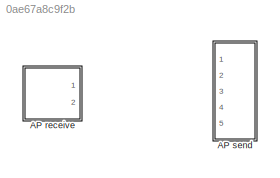
MODEL slx_0ae67a8c9f2b
KIND library
CONFIG AbsTol = auto
CONFIG EnableMultiTasking = off
CONFIG FixedStep = auto
CONFIG MaxStep = auto
CONFIG MinStep = auto
CONFIG RelTol = 1e-3
CONFIG SampleTimeConstraint = Unconstrained
CONFIG Solver = VariableStepAuto
CONFIG SolverName = VariableStepAuto
CONFIG StartTime = 0.0
CONFIG StopTime = 10.0
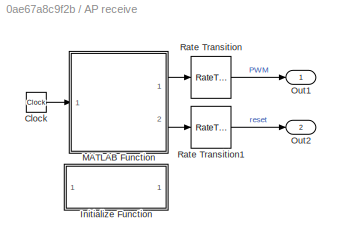
BLOCK [SubSystem] AP receive
  Ports = [0, 2]
  RequestExecContextInheritance = off
BLOCK [Clock] AP receive/Clock
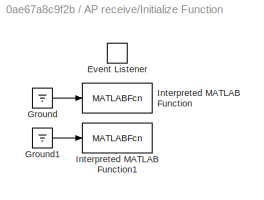
BLOCK [SubSystem] AP receive/Initialize Function
  Ports = []
  RequestExecContextInheritance = off
  TreatAsAtomicUnit = on
BLOCK [EventListener] AP receive/Initialize Function/Event Listener
  DisableCoverage = on
  EventName = reset
BLOCK [Ground] AP receive/Initialize Function/Ground
BLOCK [Ground] AP receive/Initialize Function/Ground1
BLOCK [MATLABFcn] AP receive/Initialize Function/Interpreted MATLAB Function
  MATLABFcn = clear('AP_receve')
  OutputDimensions = 0
  Ports = [1]
BLOCK [MATLABFcn] AP receive/Initialize Function/Interpreted MATLAB Function1
  MATLABFcn = clear('AP_send')
  OutputDimensions = 0
  Ports = [1]
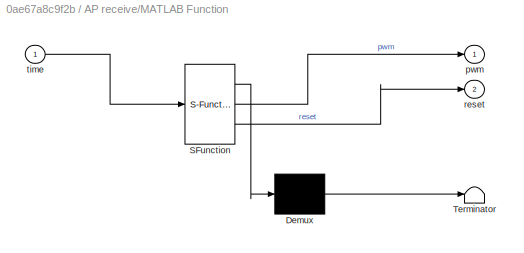
BLOCK [SubSystem] AP receive/MATLAB Function
  ErrorFcn = Stateflow.Translate.translate
  PermitHierarchicalResolution = ExplicitOnly
  Ports = [1, 2]
  RequestExecContextInheritance = off
  SFBlockType = MATLAB Function
  SystemSampleTime = 1/400
  TreatAsAtomicUnit = on
BLOCK [Demux] AP receive/MATLAB Function/ Demux 
  Outputs = 1
  Ports = [1, 1]
BLOCK [S-Function] AP receive/MATLAB Function/ SFunction 
  EnableBusSupport = on
  FunctionName = sf_sfun
  PortCounts = [1 3]
  Ports = [1, 3]
  SFcnIsStateOwnerBlock = off
  SFunctionDeploymentMode = off
  Tag = Stateflow S-Function AP_Conector 2
BLOCK [Terminator] AP receive/MATLAB Function/ Terminator 
BLOCK [Outport] AP receive/MATLAB Function/pwm
BLOCK [Outport] AP receive/MATLAB Function/reset
  Port = 2
BLOCK [Inport] AP receive/MATLAB Function/time
BLOCK [Outport] AP receive/Out1
  IconDisplay = Signal name
BLOCK [Outport] AP receive/Out2
  IconDisplay = Signal name
  Port = 2
BLOCK [RateTransition] AP receive/Rate Transition
BLOCK [RateTransition] AP receive/Rate Transition1
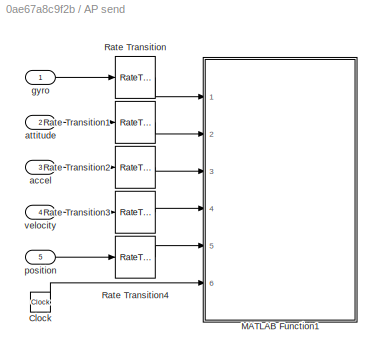
BLOCK [SubSystem] AP send
  Ports = [5]
  RequestExecContextInheritance = off
BLOCK [Clock] AP send/Clock
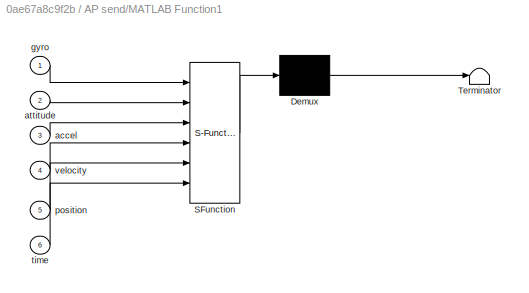
BLOCK [SubSystem] AP send/MATLAB Function1
  ErrorFcn = Stateflow.Translate.translate
  PermitHierarchicalResolution = ExplicitOnly
  Ports = [6]
  RequestExecContextInheritance = off
  SFBlockType = MATLAB Function
  SystemSampleTime = 1/400
  TreatAsAtomicUnit = on
BLOCK [Demux] AP send/MATLAB Function1/ Demux 
  Outputs = 1
  Ports = [1, 1]
BLOCK [S-Function] AP send/MATLAB Function1/ SFunction 
  EnableBusSupport = on
  FunctionName = sf_sfun
  PortCounts = [6 1]
  Ports = [6, 1]
  SFcnIsStateOwnerBlock = off
  SFunctionDeploymentMode = off
  Tag = Stateflow S-Function AP_Conector 4
BLOCK [Terminator] AP send/MATLAB Function1/ Terminator 
BLOCK [Inport] AP send/MATLAB Function1/accel
  Port = 3
BLOCK [Inport] AP send/MATLAB Function1/attitude
  Port = 2
BLOCK [Inport] AP send/MATLAB Function1/gyro
BLOCK [Inport] AP send/MATLAB Function1/position
  Port = 5
BLOCK [Inport] AP send/MATLAB Function1/time
  Port = 6
BLOCK [Inport] AP send/MATLAB Function1/velocity
  Port = 4
BLOCK [RateTransition] AP send/Rate Transition
BLOCK [RateTransition] AP send/Rate Transition1
BLOCK [RateTransition] AP send/Rate Transition2
BLOCK [RateTransition] AP send/Rate Transition3
BLOCK [RateTransition] AP send/Rate Transition4
BLOCK [Inport] AP send/accel
  Port = 3
BLOCK [Inport] AP send/attitude
  Port = 2
BLOCK [Inport] AP send/gyro
BLOCK [Inport] AP send/position
  Port = 5
BLOCK [Inport] AP send/velocity
  Port = 4
LINE AP receive/Clock:1 -> AP receive/MATLAB Function:1
LINE AP receive/Initialize Function/Ground1:1 -> AP receive/Initialize Function/Interpreted MATLAB Function1:1
LINE AP receive/Initialize Function/Ground:1 -> AP receive/Initialize Function/Interpreted MATLAB Function:1
LINE AP receive/MATLAB Function:1 -> AP receive/Rate Transition:1
LINE AP receive/MATLAB Function:2 -> AP receive/Rate Transition1:1
LINE AP receive/Rate Transition1:1 -> AP receive/Out2:1
LINE AP receive/Rate Transition:1 -> AP receive/Out1:1
LINE AP send/Clock:1 -> AP send/MATLAB Function1:6
LINE AP send/Rate Transition1:1 -> AP send/MATLAB Function1:2
LINE AP send/Rate Transition2:1 -> AP send/MATLAB Function1:3
LINE AP send/Rate Transition3:1 -> AP send/MATLAB Function1:4
LINE AP send/Rate Transition4:1 -> AP send/MATLAB Function1:5
LINE AP send/Rate Transition:1 -> AP send/MATLAB Function1:1
LINE AP send/accel:1 -> AP send/Rate Transition2:1
LINE AP send/attitude:1 -> AP send/Rate Transition1:1
LINE AP send/gyro:1 -> AP send/Rate Transition:1
LINE AP send/position:1 -> AP send/Rate Transition4:1
LINE AP send/velocity:1 -> AP send/Rate Transition3:1
CHART AP receive/MATLAB Function states=1 transitions=1
  STATE_LABEL 'eML_blk_kernel()'
  STATE_LABEL "SCRIPT:\nfunction [pwm, reset]  = fcn(time)\npwm = zeros(16,1); %#ok<PREALL>\nreset = false; %#ok<NASGU>\ncoder.extrinsic('AP_receve')\n[pwm, reset] = AP_receve(time);\nend"
CHART AP send/MATLAB Function1 states=1 transitions=1
  STATE_LABEL 'eML_blk_kernel()'
  STATE_LABEL "SCRIPT:\nfunction fcn(gyro, attitude, accel, velocity, position, time)\ncoder.extrinsic('AP_send')\nAP_send(gyro, attitude, accel, velocity, position, time)\nend"
